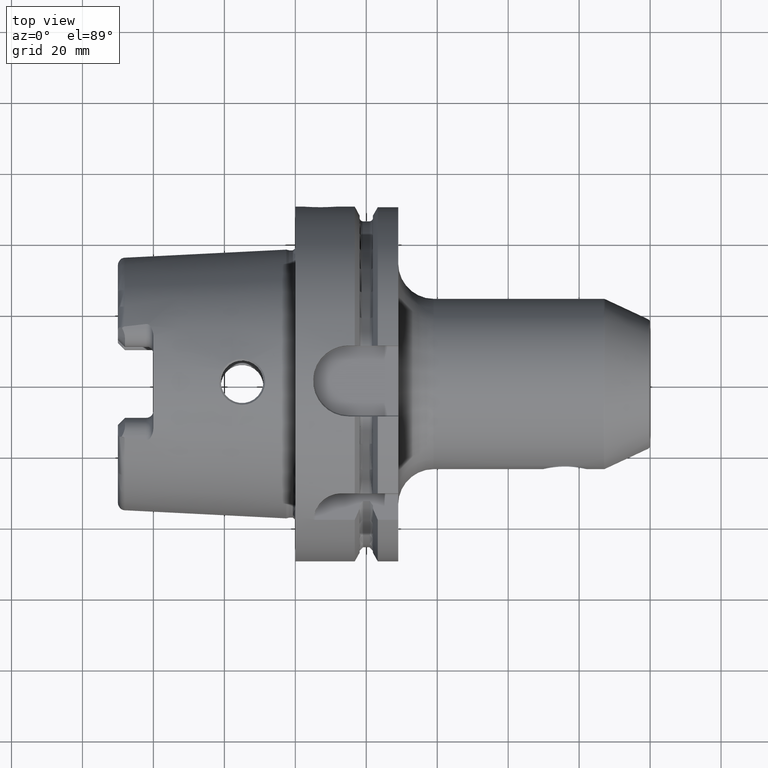
[diagram: clean part render]
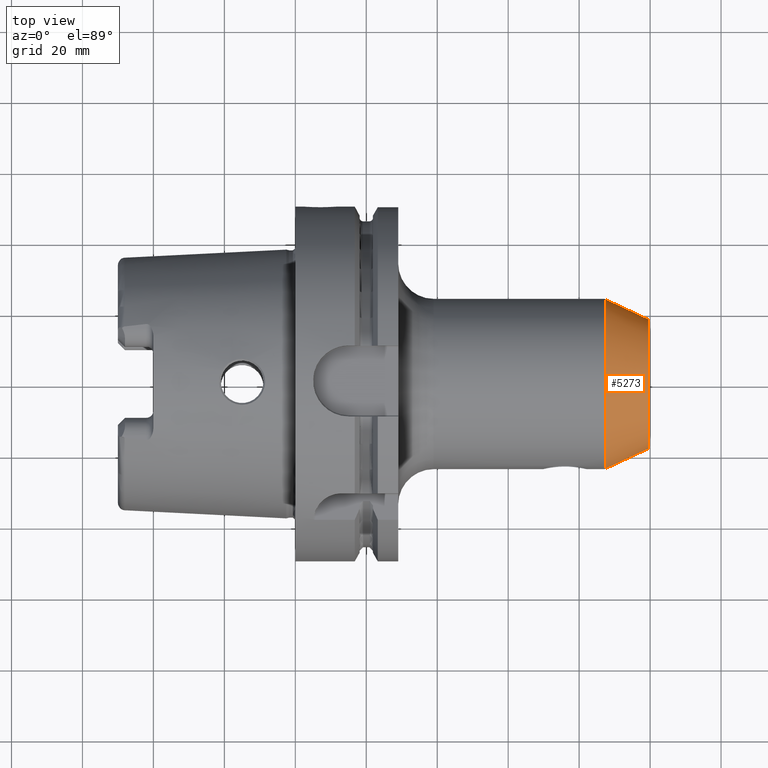
[diagram: same view with one face highlighted and labeled with its STEP entity id]
A machine part, top view. The second image highlights one B-rep face of the part: STEP entity #5273.
In plain terms, the highlighted conical surface has half-angle 25 deg.
Its self-contained STEP definition (entity closure, byte-faithful):
#1930=CARTESIAN_POINT('',(8.733388207604E1,0.E0,0.E0));
#1931=DIRECTION('',(-1.E0,0.E0,0.E0));
#1932=DIRECTION('',(0.E0,-1.E0,0.E0));
#1933=AXIS2_PLACEMENT_3D('',#1930,#1931,#1932);
#1935=CARTESIAN_POINT('',(9.942261826174E1,0.E0,0.E0));
#1936=DIRECTION('',(-1.E0,0.E0,0.E0));
#1937=DIRECTION('',(0.E0,-1.E0,0.E0));
#1938=AXIS2_PLACEMENT_3D('',#1935,#1936,#1937);
#1945=DIRECTION('',(-9.063077870367E-1,-4.226182617407E-1,-8.950844487363E-14));
#1946=VECTOR('',#1945,1.333844457546E1);
#1947=CARTESIAN_POINT('',(9.942261826174E1,-1.826923752623E1,
1.180699593022E-13));
#1948=LINE('',#1947,#1946);
#1954=DIRECTION('',(-9.063077870367E-1,4.226182617407E-1,8.917609182086E-14));
#1955=VECTOR('',#1954,1.333844457546E1);
#1956=CARTESIAN_POINT('',(9.942261826174E1,1.826923752623E1,
-1.186292933837E-13));
#1957=LINE('',#1956,#1955);
#3305=CARTESIAN_POINT('',(8.733388207604E1,2.390630778704E1,0.E0));
#3306=CARTESIAN_POINT('',(8.733388207604E1,-2.390630778704E1,0.E0));
#3307=VERTEX_POINT('',#3305);
#3308=VERTEX_POINT('',#3306);
#3309=CARTESIAN_POINT('',(9.942261826174E1,1.826923752623E1,0.E0));
#3310=CARTESIAN_POINT('',(9.942261826174E1,-1.826923752623E1,0.E0));
#3311=VERTEX_POINT('',#3309);
#3312=VERTEX_POINT('',#3310);
#5259=CARTESIAN_POINT('',(9.337825016889E1,0.E0,0.E0));
#5260=DIRECTION('',(-1.E0,0.E0,0.E0));
#5261=DIRECTION('',(0.E0,1.E0,0.E0));
#5262=AXIS2_PLACEMENT_3D('',#5259,#5260,#5261);
#5263=CONICAL_SURFACE('',#5262,2.108777265663E1,2.5E1);
#5264=ORIENTED_EDGE('',*,*,#5253,.T.);
#5266=ORIENTED_EDGE('',*,*,#5265,.F.);
#5268=ORIENTED_EDGE('',*,*,#5267,.F.);
#5270=ORIENTED_EDGE('',*,*,#5269,.T.);
#5271=EDGE_LOOP('',(#5264,#5266,#5268,#5270));
#5272=FACE_OUTER_BOUND('',#5271,.F.);
#5273=ADVANCED_FACE('',(#5272),#5263,.T.);
#1934=CIRCLE('',#1933,2.390630778704E1);
#1939=CIRCLE('',#1938,1.826923752623E1);
#5253=EDGE_CURVE('',#3308,#3307,#1934,.T.);
#5265=EDGE_CURVE('',#3311,#3307,#1957,.T.);
#5267=EDGE_CURVE('',#3312,#3311,#1939,.T.);
#5269=EDGE_CURVE('',#3312,#3308,#1948,.T.);